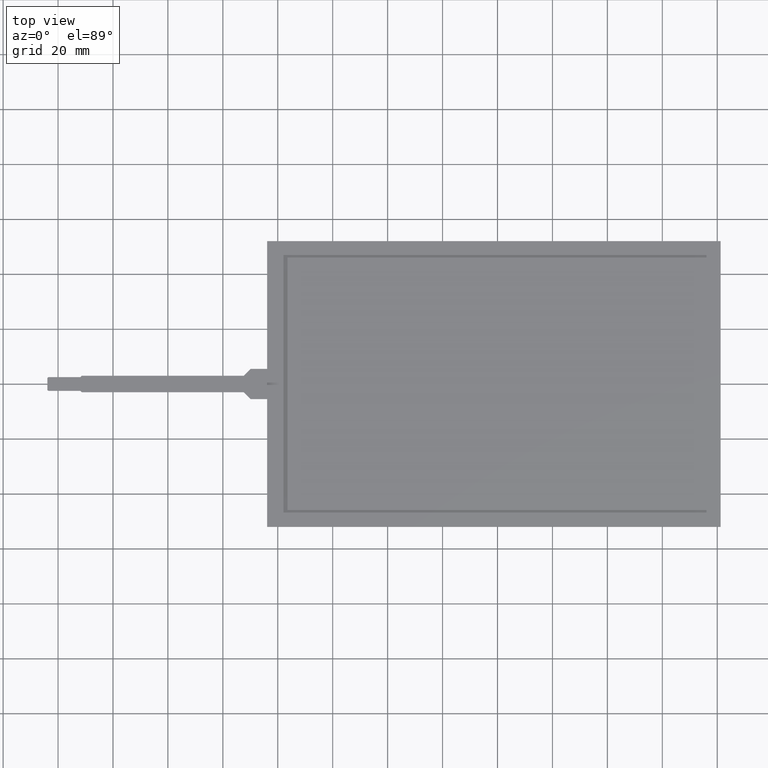
[diagram: clean part render]
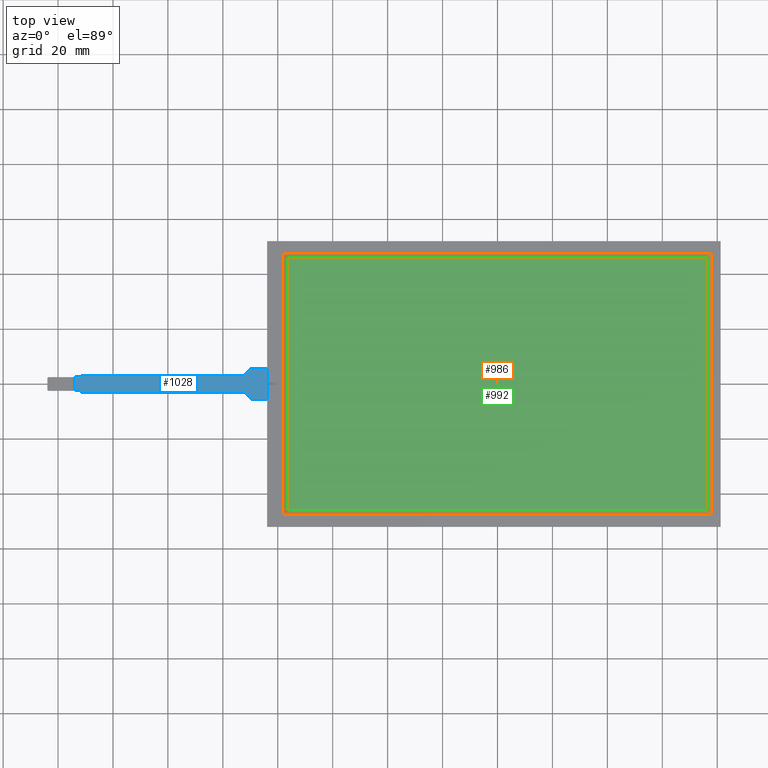
[diagram: same view with three faces highlighted in distinct colors, each labeled with its STEP entity id]
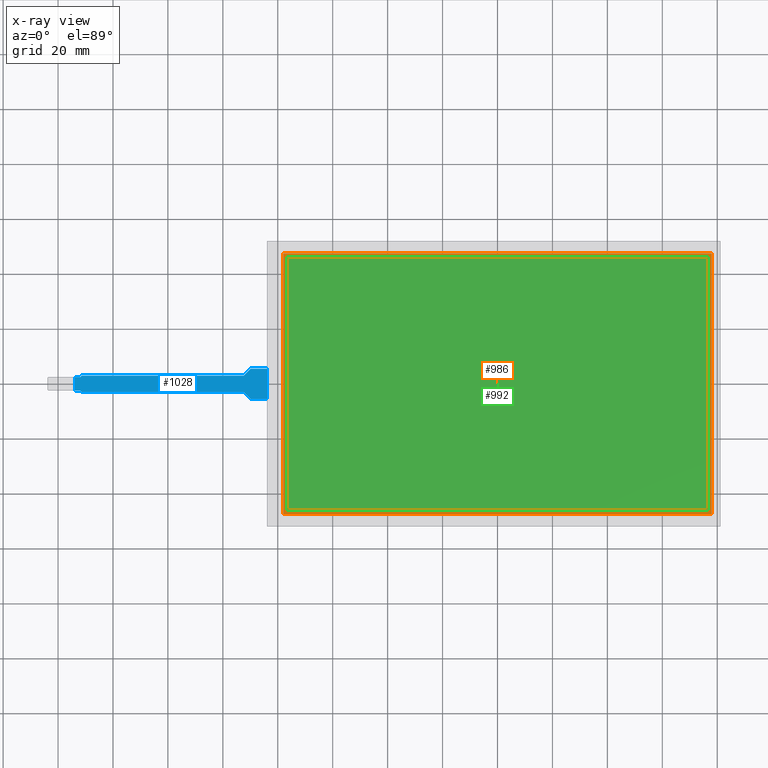
[diagram: x-ray of the same camera — body ghosted, the three highlighted faces saturated]
A machine part, top view with three faces highlighted in distinct colors.
The next image is the same camera in x-ray (body ghosted, the three faces saturated) — at least one of them is partly hidden behind the body in this view.
Their STEP definitions:

[orange] entity #986 — the highlighted planar face has unit normal (0, 0, -1).
#66=FACE_BOUND('',#129,.T.);
#76=FACE_OUTER_BOUND('',#128,.T.);
#128=EDGE_LOOP('',(#688,#689,#690,#691));
#129=EDGE_LOOP('',(#692,#693,#694,#695));
#176=LINE('',#1382,#302);
#180=LINE('',#1389,#306);
#183=LINE('',#1395,#309);
#185=LINE('',#1398,#311);
#188=LINE('',#1406,#314);
#192=LINE('',#1413,#318);
#195=LINE('',#1419,#321);
#197=LINE('',#1422,#323);
#302=VECTOR('',#1124,10.);
#306=VECTOR('',#1130,10.);
#309=VECTOR('',#1135,10.);
#311=VECTOR('',#1139,10.);
#314=VECTOR('',#1144,10.);
#318=VECTOR('',#1150,10.);
#321=VECTOR('',#1155,10.);
#323=VECTOR('',#1159,10.);
#428=VERTEX_POINT('',#1379);
#429=VERTEX_POINT('',#1381);
#431=VERTEX_POINT('',#1387);
#433=VERTEX_POINT('',#1393);
#436=VERTEX_POINT('',#1403);
#437=VERTEX_POINT('',#1405);
#439=VERTEX_POINT('',#1411);
#441=VERTEX_POINT('',#1417);
#520=EDGE_CURVE('',#428,#429,#176,.T.);
#524=EDGE_CURVE('',#431,#428,#180,.T.);
#527=EDGE_CURVE('',#433,#431,#183,.T.);
#529=EDGE_CURVE('',#429,#433,#185,.T.);
#532=EDGE_CURVE('',#436,#437,#188,.T.);
#536=EDGE_CURVE('',#439,#436,#192,.T.);
#539=EDGE_CURVE('',#441,#439,#195,.T.);
#541=EDGE_CURVE('',#437,#441,#197,.T.);
#688=ORIENTED_EDGE('',*,*,#541,.F.);
#689=ORIENTED_EDGE('',*,*,#532,.F.);
#690=ORIENTED_EDGE('',*,*,#536,.F.);
#691=ORIENTED_EDGE('',*,*,#539,.F.);
#692=ORIENTED_EDGE('',*,*,#529,.F.);
#693=ORIENTED_EDGE('',*,*,#520,.F.);
#694=ORIENTED_EDGE('',*,*,#524,.F.);
#695=ORIENTED_EDGE('',*,*,#527,.F.);
#940=PLANE('',#1062);
#986=ADVANCED_FACE('',(#76,#66),#940,.F.);
#1062=AXIS2_PLACEMENT_3D('',#1423,#1160,#1161);
#1124=DIRECTION('',(1.,0.,0.));
#1130=DIRECTION('',(0.,-1.,0.));
#1135=DIRECTION('',(-1.,0.,0.));
#1139=DIRECTION('',(0.,1.,0.));
#1144=DIRECTION('',(-3.74206201685328E-16,1.,0.));
#1150=DIRECTION('',(-1.,-1.13942067953833E-16,0.));
#1155=DIRECTION('',(0.,-1.,0.));
#1159=DIRECTION('',(1.,0.,0.));
#1160=DIRECTION('center_axis',(0.,0.,-1.));
#1161=DIRECTION('ref_axis',(-1.,0.,0.));
#1379=CARTESIAN_POINT('',(-76.45,-45.97,-0.1));
#1381=CARTESIAN_POINT('',(76.45,-45.97,-0.1));
#1382=CARTESIAN_POINT('',(76.45,-45.97,-0.1));
#1387=CARTESIAN_POINT('',(-76.45,45.97,-0.1));
#1389=CARTESIAN_POINT('',(-76.45,-45.97,-0.1));
#1393=CARTESIAN_POINT('',(76.45,45.97,-0.1));
#1395=CARTESIAN_POINT('',(-76.45,45.97,-0.1));
#1398=CARTESIAN_POINT('',(76.45,45.97,-0.1));
#1403=CARTESIAN_POINT('',(-77.95,-47.47,-0.1));
#1405=CARTESIAN_POINT('',(-77.95,47.47,-0.1));
#1406=CARTESIAN_POINT('',(-77.95,47.47,-0.1));
#1411=CARTESIAN_POINT('',(77.95,-47.47,-0.1));
#1413=CARTESIAN_POINT('',(-77.95,-47.47,-0.1));
#1417=CARTESIAN_POINT('',(77.95,47.47,-0.1));
#1419=CARTESIAN_POINT('',(77.95,-47.47,-0.1));
#1422=CARTESIAN_POINT('',(77.95,47.47,-0.1));
#1423=CARTESIAN_POINT('Origin',(-8.88178419700125E-15,-1.77635683940025E-14,
-0.1));

[blue] entity #1028 — the highlighted planar face has unit normal (0, 0, 1).
#118=FACE_OUTER_BOUND('',#172,.T.);
#172=EDGE_LOOP('',(#908,#909,#910,#911,#912,#913,#914,#915,#916,#917,#918,
#919));
#264=LINE('',#1586,#390);
#267=LINE('',#1592,#393);
#271=LINE('',#1601,#397);
#275=LINE('',#1609,#401);
#278=LINE('',#1615,#404);
#281=LINE('',#1621,#407);
#284=LINE('',#1627,#410);
#287=LINE('',#1632,#413);
#289=LINE('',#1636,#415);
#292=LINE('',#1642,#418);
#295=LINE('',#1648,#421);
#298=LINE('',#1653,#424);
#390=VECTOR('',#1310,10.);
#393=VECTOR('',#1315,10.);
#397=VECTOR('',#1323,10.);
#401=VECTOR('',#1329,10.);
#404=VECTOR('',#1334,10.);
#407=VECTOR('',#1339,10.);
#410=VECTOR('',#1344,10.);
#413=VECTOR('',#1349,10.);
#415=VECTOR('',#1353,10.);
#418=VECTOR('',#1358,10.);
#421=VECTOR('',#1363,10.);
#424=VECTOR('',#1368,10.);
#495=VERTEX_POINT('',#1583);
#496=VERTEX_POINT('',#1585);
#498=VERTEX_POINT('',#1591);
#500=VERTEX_POINT('',#1599);
#501=VERTEX_POINT('',#1600);
#504=VERTEX_POINT('',#1608);
#506=VERTEX_POINT('',#1614);
#508=VERTEX_POINT('',#1620);
#510=VERTEX_POINT('',#1626);
#512=VERTEX_POINT('',#1635);
#514=VERTEX_POINT('',#1641);
#516=VERTEX_POINT('',#1647);
#620=EDGE_CURVE('',#496,#495,#264,.T.);
#623=EDGE_CURVE('',#498,#496,#267,.T.);
#627=EDGE_CURVE('',#500,#501,#271,.T.);
#631=EDGE_CURVE('',#501,#504,#275,.T.);
#634=EDGE_CURVE('',#504,#506,#278,.T.);
#637=EDGE_CURVE('',#506,#508,#281,.T.);
#640=EDGE_CURVE('',#508,#510,#284,.T.);
#643=EDGE_CURVE('',#510,#498,#287,.T.);
#645=EDGE_CURVE('',#495,#512,#289,.T.);
#648=EDGE_CURVE('',#512,#514,#292,.T.);
#651=EDGE_CURVE('',#514,#516,#295,.T.);
#654=EDGE_CURVE('',#516,#500,#298,.T.);
#908=ORIENTED_EDGE('',*,*,#623,.T.);
#909=ORIENTED_EDGE('',*,*,#620,.T.);
#910=ORIENTED_EDGE('',*,*,#645,.T.);
#911=ORIENTED_EDGE('',*,*,#648,.T.);
#912=ORIENTED_EDGE('',*,*,#651,.T.);
#913=ORIENTED_EDGE('',*,*,#654,.T.);
#914=ORIENTED_EDGE('',*,*,#627,.T.);
#915=ORIENTED_EDGE('',*,*,#631,.T.);
#916=ORIENTED_EDGE('',*,*,#634,.T.);
#917=ORIENTED_EDGE('',*,*,#637,.T.);
#918=ORIENTED_EDGE('',*,*,#640,.T.);
#919=ORIENTED_EDGE('',*,*,#643,.T.);
#976=PLANE('',#1116);
#1028=ADVANCED_FACE('',(#118),#976,.T.);
#1116=AXIS2_PLACEMENT_3D('',#1655,#1370,#1371);
#1310=DIRECTION('',(1.,-2.35922392732846E-15,0.));
#1315=DIRECTION('',(0.,-1.,0.));
#1323=DIRECTION('',(0.,1.,0.));
#1329=DIRECTION('',(-1.,0.,0.));
#1334=DIRECTION('',(-0.707106781186547,-0.707106781186548,0.));
#1339=DIRECTION('',(-1.,0.,0.));
#1344=DIRECTION('',(-0.707106781186542,-0.707106781186553,0.));
#1349=DIRECTION('',(-1.,6.93889390390723E-16,0.));
#1353=DIRECTION('',(0.707106781186557,-0.707106781186538,0.));
#1358=DIRECTION('',(1.,7.52693576017055E-17,0.));
#1363=DIRECTION('',(0.707106781186547,-0.707106781186548,0.));
#1368=DIRECTION('',(1.,7.40148683083438E-16,0.));
#1370=DIRECTION('center_axis',(0.,0.,1.));
#1371=DIRECTION('ref_axis',(1.,0.,0.));
#1583=CARTESIAN_POINT('',(-151.9,-2.50000000000002,0.2));
#1585=CARTESIAN_POINT('',(-153.9,-2.50000000000001,0.2));
#1586=CARTESIAN_POINT('',(-163.9,-2.49999999999999,0.2));
#1591=CARTESIAN_POINT('',(-153.9,2.50000000000002,0.2));
#1592=CARTESIAN_POINT('',(-153.9,-1.24999999999999,0.2));
#1599=CARTESIAN_POINT('',(-83.9,-5.49999999999997,0.2));
#1600=CARTESIAN_POINT('',(-83.9,5.50000000000003,0.2));
#1601=CARTESIAN_POINT('',(-83.9,-5.49999999999997,0.2));
#1608=CARTESIAN_POINT('',(-89.9,5.50000000000003,0.2));
#1609=CARTESIAN_POINT('',(-83.9,5.50000000000003,0.2));
#1614=CARTESIAN_POINT('',(-92.4,3.00000000000003,0.2));
#1615=CARTESIAN_POINT('',(-89.9,5.50000000000003,0.2));
#1620=CARTESIAN_POINT('',(-151.4,3.00000000000003,0.2));
#1621=CARTESIAN_POINT('',(-92.4,3.00000000000003,0.2));
#1626=CARTESIAN_POINT('',(-151.9,2.50000000000001,0.2));
#1627=CARTESIAN_POINT('',(-151.4,3.00000000000003,0.2));
#1632=CARTESIAN_POINT('',(-151.9,2.50000000000001,0.2));
#1635=CARTESIAN_POINT('',(-151.4,-2.99999999999997,0.2));
#1636=CARTESIAN_POINT('',(-151.9,-2.50000000000002,0.2));
#1641=CARTESIAN_POINT('',(-92.4,-2.99999999999997,0.2));
#1642=CARTESIAN_POINT('',(-151.4,-2.99999999999997,0.2));
#1647=CARTESIAN_POINT('',(-89.9,-5.49999999999997,0.2));
#1648=CARTESIAN_POINT('',(-92.4,-2.99999999999997,0.2));
#1653=CARTESIAN_POINT('',(-89.9,-5.49999999999997,0.2));
#1655=CARTESIAN_POINT('Origin',(-123.9,3.10862446895044E-14,0.2));

[green] entity #992 — the highlighted planar face has unit normal (0, 0, 1).
#82=FACE_OUTER_BOUND('',#136,.T.);
#136=EDGE_LOOP('',(#720,#721,#722,#723));
#174=LINE('',#1378,#300);
#178=LINE('',#1386,#304);
#181=LINE('',#1392,#307);
#184=LINE('',#1397,#310);
#300=VECTOR('',#1122,10.);
#304=VECTOR('',#1128,10.);
#307=VECTOR('',#1133,10.);
#310=VECTOR('',#1138,10.);
#426=VERTEX_POINT('',#1376);
#427=VERTEX_POINT('',#1377);
#430=VERTEX_POINT('',#1385);
#432=VERTEX_POINT('',#1391);
#518=EDGE_CURVE('',#426,#427,#174,.T.);
#522=EDGE_CURVE('',#430,#426,#178,.T.);
#525=EDGE_CURVE('',#432,#430,#181,.T.);
#528=EDGE_CURVE('',#427,#432,#184,.T.);
#720=ORIENTED_EDGE('',*,*,#518,.T.);
#721=ORIENTED_EDGE('',*,*,#528,.T.);
#722=ORIENTED_EDGE('',*,*,#525,.T.);
#723=ORIENTED_EDGE('',*,*,#522,.T.);
#946=PLANE('',#1068);
#992=ADVANCED_FACE('',(#82),#946,.T.);
#1068=AXIS2_PLACEMENT_3D('',#1449,#1184,#1185);
#1122=DIRECTION('',(1.,0.,0.));
#1128=DIRECTION('',(0.,-1.,0.));
#1133=DIRECTION('',(-1.,0.,0.));
#1138=DIRECTION('',(0.,1.,0.));
#1184=DIRECTION('center_axis',(0.,0.,1.));
#1185=DIRECTION('ref_axis',(1.,0.,0.));
#1376=CARTESIAN_POINT('',(-76.45,-45.97,0.));
#1377=CARTESIAN_POINT('',(76.45,-45.97,0.));
#1378=CARTESIAN_POINT('',(-38.8875,-45.97,0.));
#1385=CARTESIAN_POINT('',(-76.45,45.97,0.));
#1386=CARTESIAN_POINT('',(-76.45,22.985,0.));
#1391=CARTESIAN_POINT('',(76.45,45.97,0.));
#1392=CARTESIAN_POINT('',(37.5625,45.97,0.));
#1397=CARTESIAN_POINT('',(76.45,-22.985,0.));
#1449=CARTESIAN_POINT('Origin',(-1.32500000000003,-2.22044604925031E-14,
0.));